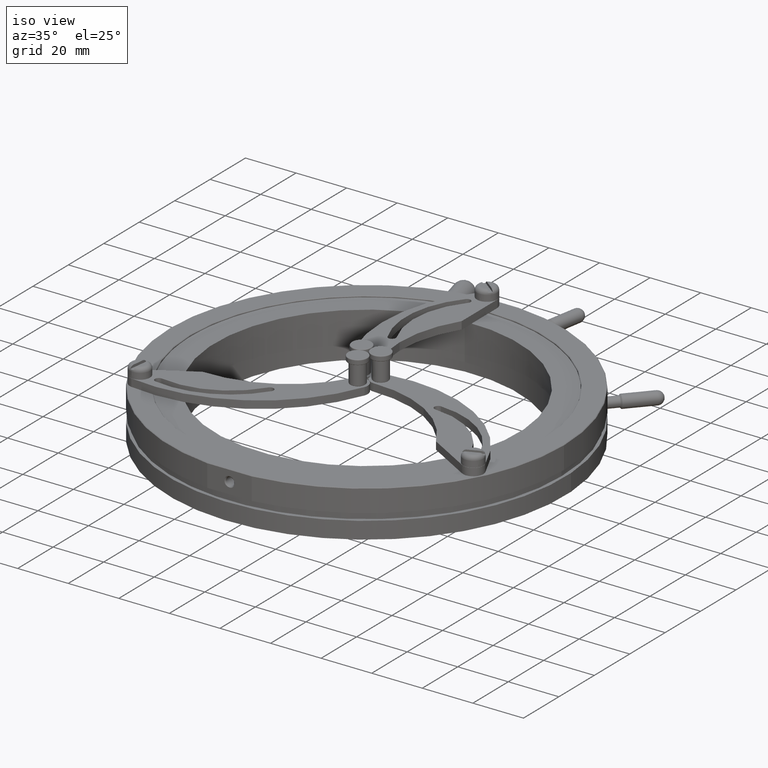
[diagram: clean part render]
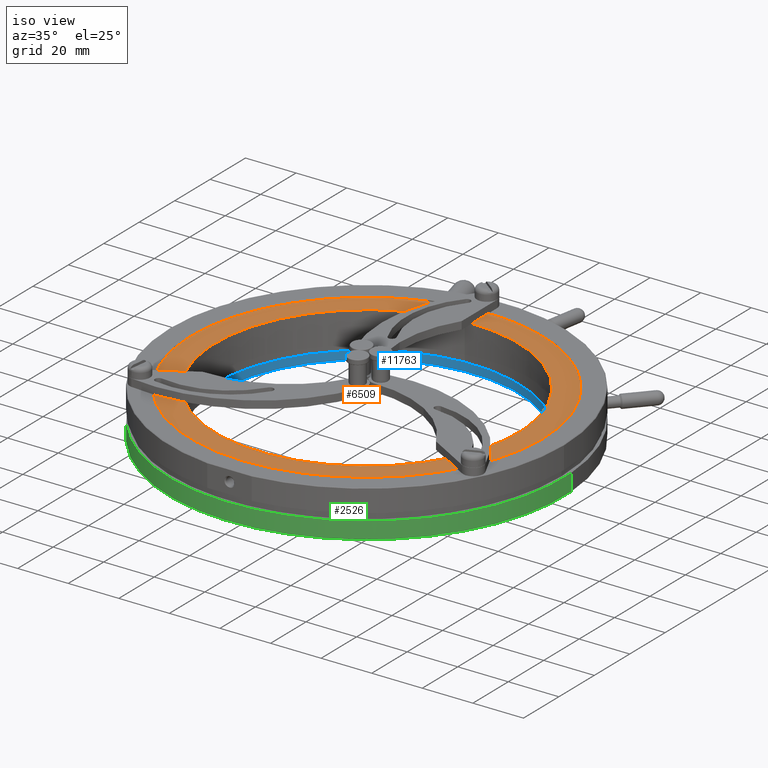
[diagram: same view with three faces highlighted in distinct colors, each labeled with its STEP entity id]
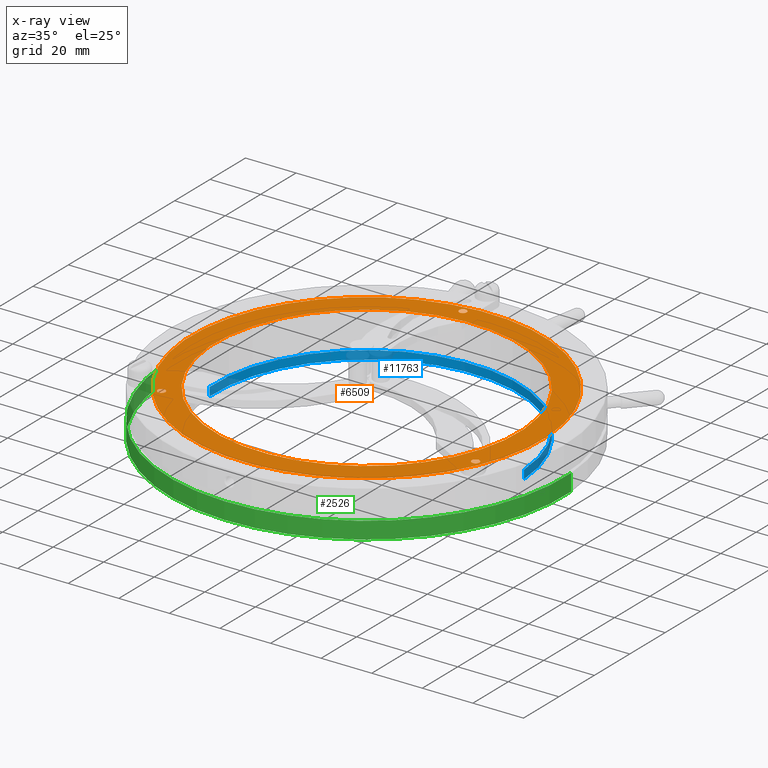
[diagram: x-ray of the same camera — body ghosted, the three highlighted faces saturated]
A machine part, iso view with three faces highlighted in distinct colors.
The next image is the same camera in x-ray (body ghosted, the three faces saturated) — at least one of them is partly hidden behind the body in this view.
Their STEP definitions:

[orange] entity #6509 — the highlighted planar face has unit normal (-0, 0, -1).
#20 = CIRCLE ( 'NONE', #10666, 1.499999999999998890 ) ;
#45 = AXIS2_PLACEMENT_3D ( 'NONE', #8314, #7365, #8382 ) ;
#122 = DIRECTION ( 'NONE',  ( -0.8382854268698319844, -0.5452316416878826288, 0.000000000000000000 ) ) ;
#371 = VERTEX_POINT ( 'NONE', #5680 ) ;
#416 = EDGE_LOOP ( 'NONE', ( #11783, #9301 ) ) ;
#482 = CARTESIAN_POINT ( 'NONE',  ( -7.263039500488892280E-16, -5.889044094719697203E-15, 8.499999999999994671 ) ) ;
#511 = ORIENTED_EDGE ( 'NONE', *, *, #8290, .F. ) ;
#823 = DIRECTION ( 'NONE',  ( 2.826016071182944688E-16, -7.990961862982316566E-18, 1.000000000000000000 ) ) ;
#914 = EDGE_CURVE ( 'NONE', #9840, #9964, #1955, .T. ) ;
#1038 = CIRCLE ( 'NONE', #11485, 1.499999999999998890 ) ;
#1201 = CARTESIAN_POINT ( 'NONE',  ( -53.08096293877844118, -40.05822479207026987, 8.500000000000008882 ) ) ;
#1311 = DIRECTION ( 'NONE',  ( 0.05304173921387851653, -0.9985922961354983807, -2.296939370127796450E-17 ) ) ;
#1451 = DIRECTION ( 'NONE',  ( -2.826016071182944688E-16, 7.990961862982040773E-18, -1.000000000000000000 ) ) ;
#1618 = DIRECTION ( 'NONE',  ( 0.05304173921387852347, -0.9985922961354983807, -2.496005001405477723E-17 ) ) ;
#1757 = AXIS2_PLACEMENT_3D ( 'NONE', #6922, #7787, #8983 ) ;
#1851 = CARTESIAN_POINT ( 'NONE',  ( -8.071396222230045936, 64.50068631415413734, 8.499999999999998224 ) ) ;
#1955 = CIRCLE ( 'NONE', #11803, 69.50000000000000000 ) ;
#2156 = CARTESIAN_POINT ( 'NONE',  ( 62.56891251895534367, -26.62039094795850502, 8.499999999999978684 ) ) ;
#2232 = CARTESIAN_POINT ( 'NONE',  ( -3.182504352832711714, 59.91553776812989440, 8.499999999999996447 ) ) ;
#2396 = AXIS2_PLACEMENT_3D ( 'NONE', #2522, #1451, #1311 ) ;
#2522 = CARTESIAN_POINT ( 'NONE',  ( -7.263039500488892280E-16, -5.889044094719697203E-15, 8.499999999999994671 ) ) ;
#2681 = ORIENTED_EDGE ( 'NONE', *, *, #3096, .F. ) ;
#2767 = CARTESIAN_POINT ( 'NONE',  ( -7.263039500488892280E-16, -5.889044094719697203E-15, 8.499999999999994671 ) ) ;
#2800 = ORIENTED_EDGE ( 'NONE', *, *, #3202, .F. ) ;
#3016 = DIRECTION ( 'NONE',  ( 2.826016071182944688E-16, -7.990961862982316566E-18, 1.000000000000000000 ) ) ;
#3068 = AXIS2_PLACEMENT_3D ( 'NONE', #482, #7220, #1618 ) ;
#3096 = EDGE_CURVE ( 'NONE', #371, #5104, #10500, .T. ) ;
#3193 = PLANE ( 'NONE',  #2396 ) ;
#3202 = EDGE_CURVE ( 'NONE', #3633, #5223, #5295, .T. ) ;
#3321 = CARTESIAN_POINT ( 'NONE',  ( 3.686400875364547858, -69.40216458141715350, 8.499999999999992895 ) ) ;
#3399 = DIRECTION ( 'NONE',  ( 2.826016071182944688E-16, -7.990961862982316566E-18, 1.000000000000000000 ) ) ;
#3456 = FACE_BOUND ( 'NONE', #416, .T. ) ;
#3579 = EDGE_CURVE ( 'NONE', #3810, #7074, #10924, .T. ) ;
#3613 = ORIENTED_EDGE ( 'NONE', *, *, #9275, .F. ) ;
#3633 = VERTEX_POINT ( 'NONE', #11971 ) ;
#3700 = CARTESIAN_POINT ( 'NONE',  ( 59.89493102070419894, -25.26030898461566920, 8.499999999999978684 ) ) ;
#3715 = EDGE_CURVE ( 'NONE', #5223, #3633, #8860, .T. ) ;
#3810 = VERTEX_POINT ( 'NONE', #3700 ) ;
#4092 = DIRECTION ( 'NONE',  ( 2.826016071182944688E-16, -7.990961862982316566E-18, 1.000000000000000000 ) ) ;
#4358 = EDGE_CURVE ( 'NONE', #9436, #4559, #1038, .T. ) ;
#4407 = FACE_OUTER_BOUND ( 'NONE', #11010, .T. ) ;
#4559 = VERTEX_POINT ( 'NONE', #1851 ) ;
#4963 = CARTESIAN_POINT ( 'NONE',  ( -7.263039500488892280E-16, -5.889044094719697203E-15, 8.499999999999994671 ) ) ;
#5104 = VERTEX_POINT ( 'NONE', #10837 ) ;
#5223 = VERTEX_POINT ( 'NONE', #2232 ) ;
#5295 = CIRCLE ( 'NONE', #7326, 59.99999999999999289 ) ;
#5436 = DIRECTION ( 'NONE',  ( 0.8913271660837176480, -0.4533606544476138089, 0.000000000000000000 ) ) ;
#5463 = DIRECTION ( 'NONE',  ( 0.05304173921387852347, -0.9985922961354983807, -2.496005001405477723E-17 ) ) ;
#5525 = DIRECTION ( 'NONE',  ( -0.05304173921387900226, 0.9985922961354982696, 0.000000000000000000 ) ) ;
#5680 = CARTESIAN_POINT ( 'NONE',  ( -51.82353479847369471, -39.24037732953844682, 8.500000000000008882 ) ) ;
#5696 = CARTESIAN_POINT ( 'NONE',  ( -7.263039500488892280E-16, -5.889044094719697203E-15, 8.499999999999994671 ) ) ;
#5876 = CIRCLE ( 'NONE', #3068, 69.50000000000000000 ) ;
#5888 = AXIS2_PLACEMENT_3D ( 'NONE', #6393, #10032, #5436 ) ;
#6393 = CARTESIAN_POINT ( 'NONE',  ( 61.23192176982976775, -25.94034996628708711, 8.499999999999978684 ) ) ;
#6509 = ADVANCED_FACE ( 'NONE', ( #7309, #9123, #3456, #8176, #4407 ), #3193, .F. ) ;
#6687 = CIRCLE ( 'NONE', #45, 1.499999999999993117 ) ;
#6922 = CARTESIAN_POINT ( 'NONE',  ( -53.08096293877844118, -40.05822479207026987, 8.500000000000008882 ) ) ;
#7074 = VERTEX_POINT ( 'NONE', #2156 ) ;
#7220 = DIRECTION ( 'NONE',  ( -2.826016071182944688E-16, 7.990961862982316566E-18, -1.000000000000000000 ) ) ;
#7309 = FACE_BOUND ( 'NONE', #9081, .T. ) ;
#7326 = AXIS2_PLACEMENT_3D ( 'NONE', #4963, #4092, #10821 ) ;
#7365 = DIRECTION ( 'NONE',  ( 2.826016071182944688E-16, -7.990961862982316566E-18, 1.000000000000000000 ) ) ;
#7532 = CARTESIAN_POINT ( 'NONE',  ( -8.150958831050887810, 65.99857475835737830, 8.499999999999998224 ) ) ;
#7691 = DIRECTION ( 'NONE',  ( -0.05304173921387852347, 0.9985922961354984917, 2.891205793294678696E-17 ) ) ;
#7787 = DIRECTION ( 'NONE',  ( 2.826016071182944688E-16, -7.990961862982316566E-18, 1.000000000000000000 ) ) ;
#8176 = FACE_BOUND ( 'NONE', #10727, .T. ) ;
#8290 = EDGE_CURVE ( 'NONE', #9964, #9840, #5876, .T. ) ;
#8314 = CARTESIAN_POINT ( 'NONE',  ( 61.23192176982976775, -25.94034996628708711, 8.499999999999978684 ) ) ;
#8382 = DIRECTION ( 'NONE',  ( 0.8913271660837176480, -0.4533606544476138089, 0.000000000000000000 ) ) ;
#8559 = ORIENTED_EDGE ( 'NONE', *, *, #3579, .F. ) ;
#8860 = CIRCLE ( 'NONE', #9456, 59.99999999999999289 ) ;
#8983 = DIRECTION ( 'NONE',  ( -0.8382854268698319844, -0.5452316416878826288, 0.000000000000000000 ) ) ;
#9081 = EDGE_LOOP ( 'NONE', ( #3613, #8559 ) ) ;
#9123 = FACE_BOUND ( 'NONE', #9539, .T. ) ;
#9249 = CARTESIAN_POINT ( 'NONE',  ( -8.150958831050887810, 65.99857475835737830, 8.499999999999998224 ) ) ;
#9275 = EDGE_CURVE ( 'NONE', #7074, #3810, #6687, .T. ) ;
#9301 = ORIENTED_EDGE ( 'NONE', *, *, #12276, .F. ) ;
#9411 = DIRECTION ( 'NONE',  ( 2.826016071182944688E-16, -7.990961862982316566E-18, 1.000000000000000000 ) ) ;
#9436 = VERTEX_POINT ( 'NONE', #11563 ) ;
#9456 = AXIS2_PLACEMENT_3D ( 'NONE', #2767, #823, #7691 ) ;
#9539 = EDGE_LOOP ( 'NONE', ( #10237, #2681 ) ) ;
#9716 = CARTESIAN_POINT ( 'NONE',  ( -3.686400875364558516, 69.40216458141713929, 8.499999999999996447 ) ) ;
#9773 = CIRCLE ( 'NONE', #1757, 1.499999999999996447 ) ;
#9840 = VERTEX_POINT ( 'NONE', #9716 ) ;
#9964 = VERTEX_POINT ( 'NONE', #3321 ) ;
#10032 = DIRECTION ( 'NONE',  ( 2.826016071182944688E-16, -7.990961862982316566E-18, 1.000000000000000000 ) ) ;
#10237 = ORIENTED_EDGE ( 'NONE', *, *, #12011, .F. ) ;
#10500 = CIRCLE ( 'NONE', #11921, 1.499999999999996447 ) ;
#10666 = AXIS2_PLACEMENT_3D ( 'NONE', #7532, #9411, #5525 ) ;
#10727 = EDGE_LOOP ( 'NONE', ( #10756, #2800 ) ) ;
#10756 = ORIENTED_EDGE ( 'NONE', *, *, #3715, .F. ) ;
#10821 = DIRECTION ( 'NONE',  ( -0.05304173921387852347, 0.9985922961354984917, 2.891205793294678696E-17 ) ) ;
#10837 = CARTESIAN_POINT ( 'NONE',  ( -54.33839107908318766, -40.87607225460208582, 8.500000000000008882 ) ) ;
#10924 = CIRCLE ( 'NONE', #5888, 1.499999999999993117 ) ;
#11010 = EDGE_LOOP ( 'NONE', ( #12421, #511 ) ) ;
#11248 = DIRECTION ( 'NONE',  ( -2.826016071182944688E-16, 7.990961862982316566E-18, -1.000000000000000000 ) ) ;
#11485 = AXIS2_PLACEMENT_3D ( 'NONE', #9249, #3399, #11945 ) ;
#11563 = CARTESIAN_POINT ( 'NONE',  ( -8.230521439871706590, 67.49646320256063348, 8.499999999999998224 ) ) ;
#11783 = ORIENTED_EDGE ( 'NONE', *, *, #4358, .F. ) ;
#11803 = AXIS2_PLACEMENT_3D ( 'NONE', #5696, #11248, #5463 ) ;
#11921 = AXIS2_PLACEMENT_3D ( 'NONE', #1201, #3016, #122 ) ;
#11945 = DIRECTION ( 'NONE',  ( -0.05304173921387900226, 0.9985922961354982696, 0.000000000000000000 ) ) ;
#11971 = CARTESIAN_POINT ( 'NONE',  ( 3.182504352832700611, -59.91553776812990861, 8.499999999999992895 ) ) ;
#12011 = EDGE_CURVE ( 'NONE', #5104, #371, #9773, .T. ) ;
#12276 = EDGE_CURVE ( 'NONE', #4559, #9436, #20, .T. ) ;
#12421 = ORIENTED_EDGE ( 'NONE', *, *, #914, .F. ) ;

[blue] entity #11763 — the highlighted cylindrical surface (partial cylindrical patch) has radius 60 mm, axis along (0, 0, 1).
#77 = DIRECTION ( 'NONE',  ( 0.9985922961354983807, 0.05304173921387859286, -1.113114230418445631E-15 ) ) ;
#898 = DIRECTION ( 'NONE',  ( 1.059904512067686772E-15, 9.209603548567298587E-16, 1.000000000000000000 ) ) ;
#1336 = ORIENTED_EDGE ( 'NONE', *, *, #12244, .F. ) ;
#1339 = CIRCLE ( 'NONE', #4155, 60.00000000000029843 ) ;
#1814 = VERTEX_POINT ( 'NONE', #9085 ) ;
#1921 = VERTEX_POINT ( 'NONE', #7390 ) ;
#1951 = VECTOR ( 'NONE', #11773, 1000.000000000000000 ) ;
#2678 = EDGE_LOOP ( 'NONE', ( #1336, #7725, #5605, #5144 ) ) ;
#3261 = CIRCLE ( 'NONE', #7677, 60.00000000000029843 ) ;
#4155 = AXIS2_PLACEMENT_3D ( 'NONE', #7414, #6473, #7469 ) ;
#4346 = DIRECTION ( 'NONE',  ( 0.9985922961354983807, 0.05304173921387859286, -1.098658201451972370E-15 ) ) ;
#4456 = EDGE_CURVE ( 'NONE', #10838, #1921, #3261, .T. ) ;
#4533 = CARTESIAN_POINT ( 'NONE',  ( 59.91553776813021415, 3.182504352832741912, -6.000000000000056843 ) ) ;
#4799 = CARTESIAN_POINT ( 'NONE',  ( -59.91553776813019283, -3.182504352832716155, -9.399999999999923972 ) ) ;
#5144 = ORIENTED_EDGE ( 'NONE', *, *, #4456, .T. ) ;
#5605 = ORIENTED_EDGE ( 'NONE', *, *, #10807, .T. ) ;
#6160 = CARTESIAN_POINT ( 'NONE',  ( 59.91553776813021415, 3.182504352832738803, -9.400000000000055422 ) ) ;
#6282 = VECTOR ( 'NONE', #11250, 1000.000000000000000 ) ;
#6473 = DIRECTION ( 'NONE',  ( 1.059904512067686772E-15, 9.209603548567298587E-16, 1.000000000000000000 ) ) ;
#7390 = CARTESIAN_POINT ( 'NONE',  ( -59.91553776812989440, -3.182504352832698391, -5.999999999999922728 ) ) ;
#7414 = CARTESIAN_POINT ( 'NONE',  ( 1.199022984214427778E-14, 7.275820622532380621E-15, -9.399999999999989697 ) ) ;
#7469 = DIRECTION ( 'NONE',  ( 0.9985922961354983807, 0.05304173921387859286, -1.098658201451972370E-15 ) ) ;
#7637 = CARTESIAN_POINT ( 'NONE',  ( 1.559390518317446491E-14, 1.040708582904534343E-14, -5.999999999999989342 ) ) ;
#7677 = AXIS2_PLACEMENT_3D ( 'NONE', #7637, #898, #77 ) ;
#7725 = ORIENTED_EDGE ( 'NONE', *, *, #10169, .F. ) ;
#7879 = LINE ( 'NONE', #7939, #1951 ) ;
#7939 = CARTESIAN_POINT ( 'NONE',  ( 59.91553776813021415, 3.182504352832738803, -9.400000000000055422 ) ) ;
#8193 = AXIS2_PLACEMENT_3D ( 'NONE', #12078, #9320, #4346 ) ;
#9085 = CARTESIAN_POINT ( 'NONE',  ( -59.91553776812989440, -3.182504352832698391, -9.399999999999923972 ) ) ;
#9320 = DIRECTION ( 'NONE',  ( 1.059904512067686772E-15, 9.209603548567298587E-16, 1.000000000000000000 ) ) ;
#10169 = EDGE_CURVE ( 'NONE', #12143, #1814, #1339, .T. ) ;
#10356 = LINE ( 'NONE', #4799, #6282 ) ;
#10807 = EDGE_CURVE ( 'NONE', #12143, #10838, #7879, .T. ) ;
#10838 = VERTEX_POINT ( 'NONE', #4533 ) ;
#11250 = DIRECTION ( 'NONE',  ( 1.059904512067686772E-15, 9.209603548567298587E-16, 1.000000000000000000 ) ) ;
#11262 = CYLINDRICAL_SURFACE ( 'NONE', #8193, 60.00000000000029843 ) ;
#11763 = ADVANCED_FACE ( 'NONE', ( #12203 ), #11262, .F. ) ;
#11773 = DIRECTION ( 'NONE',  ( 1.059904512067686772E-15, 9.209603548567298587E-16, 1.000000000000000000 ) ) ;
#12078 = CARTESIAN_POINT ( 'NONE',  ( 1.199022984214427778E-14, 7.275820622532380621E-15, -9.399999999999989697 ) ) ;
#12143 = VERTEX_POINT ( 'NONE', #6160 ) ;
#12203 = FACE_OUTER_BOUND ( 'NONE', #2678, .T. ) ;
#12244 = EDGE_CURVE ( 'NONE', #1814, #1921, #10356, .T. ) ;

[green] entity #2526 — the highlighted cylindrical surface (partial cylindrical patch) has radius 78 mm, axis along (-0, -0, -1).
#477 = CIRCLE ( 'NONE', #10308, 78.00000000000038369 ) ;
#888 = EDGE_LOOP ( 'NONE', ( #10281, #8026, #10152, #11797 ) ) ;
#1244 = CARTESIAN_POINT ( 'NONE',  ( -77.89019909856924073, -4.137255658682536641, -2.699999999999903366 ) ) ;
#1361 = AXIS2_PLACEMENT_3D ( 'NONE', #6536, #1748, #5583 ) ;
#1748 = DIRECTION ( 'NONE',  ( -1.059904512067686772E-15, -9.209603548567298587E-16, -1.000000000000000000 ) ) ;
#2202 = EDGE_CURVE ( 'NONE', #7387, #2240, #3342, .T. ) ;
#2240 = VERTEX_POINT ( 'NONE', #5827 ) ;
#2526 = ADVANCED_FACE ( 'NONE', ( #2683 ), #11424, .T. ) ;
#2612 = CARTESIAN_POINT ( 'NONE',  ( 1.909159007299789849E-14, 1.344625500007250521E-14, -2.699999999999989519 ) ) ;
#2683 = FACE_OUTER_BOUND ( 'NONE', #888, .T. ) ;
#3296 = CARTESIAN_POINT ( 'NONE',  ( 77.89019909856888546, 4.137255658682549964, -9.400000000000076739 ) ) ;
#3342 = LINE ( 'NONE', #1244, #10015 ) ;
#3545 = DIRECTION ( 'NONE',  ( -1.059904512067686772E-15, -9.209603548567298587E-16, -1.000000000000000000 ) ) ;
#4177 = CARTESIAN_POINT ( 'NONE',  ( 1.199022984214427778E-14, 7.275820622532380621E-15, -9.399999999999989697 ) ) ;
#4314 = DIRECTION ( 'NONE',  ( 1.059904512067686772E-15, 9.209603548567298587E-16, 1.000000000000000000 ) ) ;
#4642 = EDGE_CURVE ( 'NONE', #2240, #6987, #6486, .T. ) ;
#4749 = EDGE_CURVE ( 'NONE', #11851, #6987, #12098, .T. ) ;
#4848 = VECTOR ( 'NONE', #3545, 1000.000000000000000 ) ;
#5080 = DIRECTION ( 'NONE',  ( -1.059904512067686772E-15, -9.209603548567298587E-16, -1.000000000000000000 ) ) ;
#5583 = DIRECTION ( 'NONE',  ( -0.9985922961354983807, -0.05304173921387859286, 1.106442217049304126E-15 ) ) ;
#5711 = CARTESIAN_POINT ( 'NONE',  ( 77.89019909856888546, 4.137255658682549964, -2.700000000000076117 ) ) ;
#5827 = CARTESIAN_POINT ( 'NONE',  ( -77.89019909856885704, -4.137255658682519766, -9.399999999999902656 ) ) ;
#6486 = CIRCLE ( 'NONE', #12293, 78.00000000000038369 ) ;
#6536 = CARTESIAN_POINT ( 'NONE',  ( 1.909159007299789849E-14, 1.344625500007250521E-14, -2.699999999999989519 ) ) ;
#6987 = VERTEX_POINT ( 'NONE', #3296 ) ;
#7387 = VERTEX_POINT ( 'NONE', #12310 ) ;
#7830 = DIRECTION ( 'NONE',  ( 0.9985922961354983807, 0.05304173921387859286, -1.112002228190255578E-15 ) ) ;
#8026 = ORIENTED_EDGE ( 'NONE', *, *, #8345, .F. ) ;
#8085 = DIRECTION ( 'NONE',  ( 0.9985922961354983807, 0.05304173921387859286, -1.106442217049304126E-15 ) ) ;
#8345 = EDGE_CURVE ( 'NONE', #7387, #11851, #477, .T. ) ;
#10015 = VECTOR ( 'NONE', #5080, 1000.000000000000000 ) ;
#10152 = ORIENTED_EDGE ( 'NONE', *, *, #2202, .T. ) ;
#10281 = ORIENTED_EDGE ( 'NONE', *, *, #4749, .F. ) ;
#10308 = AXIS2_PLACEMENT_3D ( 'NONE', #2612, #4314, #8085 ) ;
#10835 = DIRECTION ( 'NONE',  ( 1.059904512067686772E-15, 9.209603548567298587E-16, 1.000000000000000000 ) ) ;
#11424 = CYLINDRICAL_SURFACE ( 'NONE', #1361, 78.00000000000038369 ) ;
#11797 = ORIENTED_EDGE ( 'NONE', *, *, #4642, .T. ) ;
#11851 = VERTEX_POINT ( 'NONE', #5711 ) ;
#12040 = CARTESIAN_POINT ( 'NONE',  ( 77.89019909856926915, 4.137255658682573944, -2.700000000000076117 ) ) ;
#12098 = LINE ( 'NONE', #12040, #4848 ) ;
#12293 = AXIS2_PLACEMENT_3D ( 'NONE', #4177, #10835, #7830 ) ;
#12310 = CARTESIAN_POINT ( 'NONE',  ( -77.89019909856885704, -4.137255658682519766, -2.699999999999903366 ) ) ;